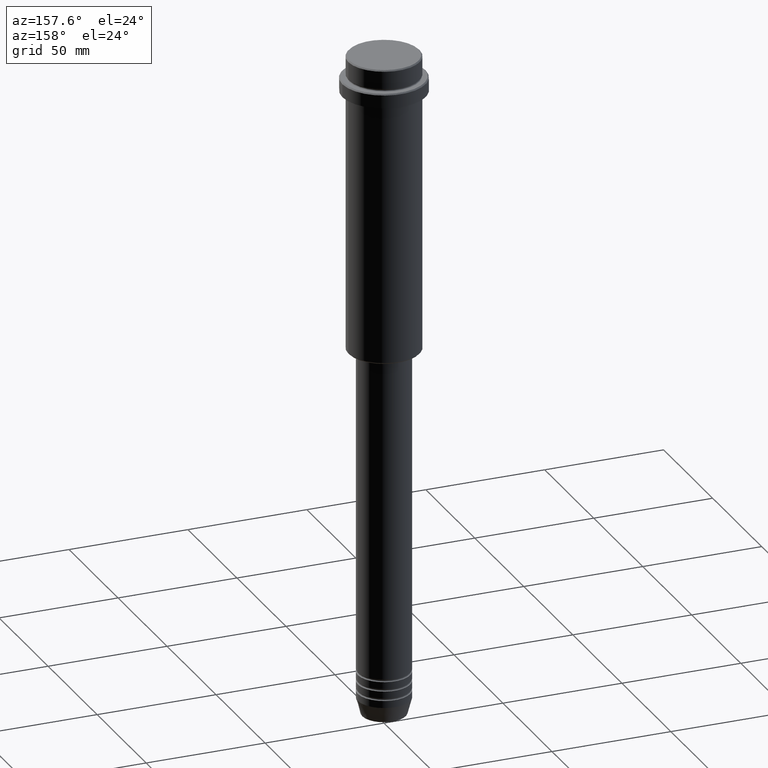
[diagram: clean part render]
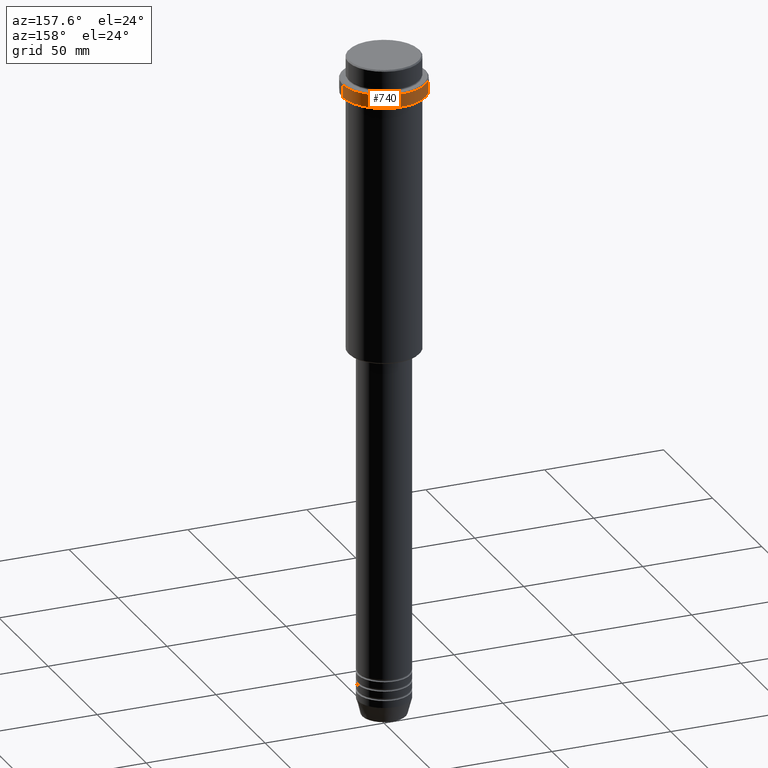
[diagram: same view with one face highlighted and labeled with its STEP entity id]
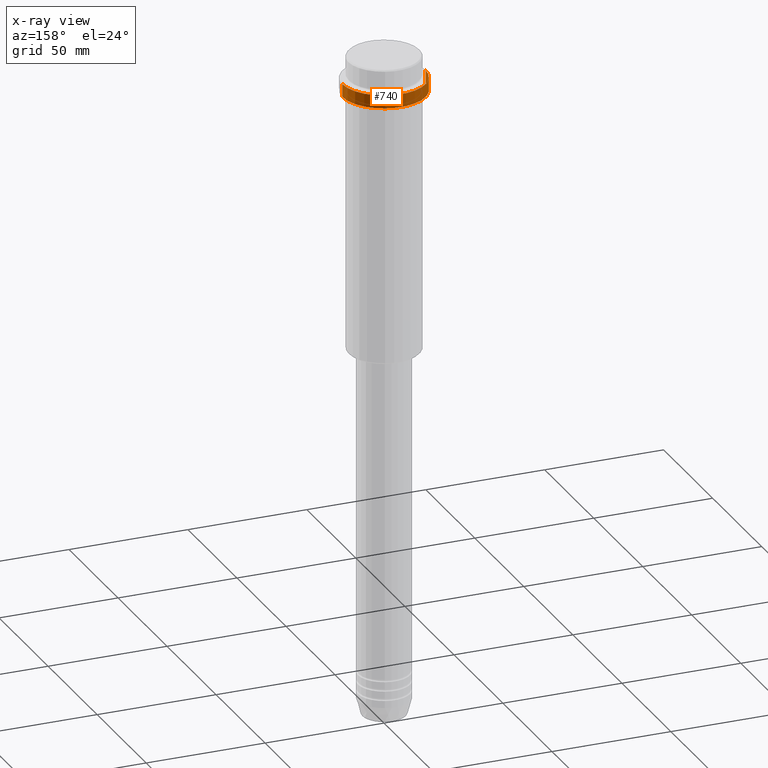
[diagram: x-ray of the same camera — body ghosted, the highlighted face saturated]
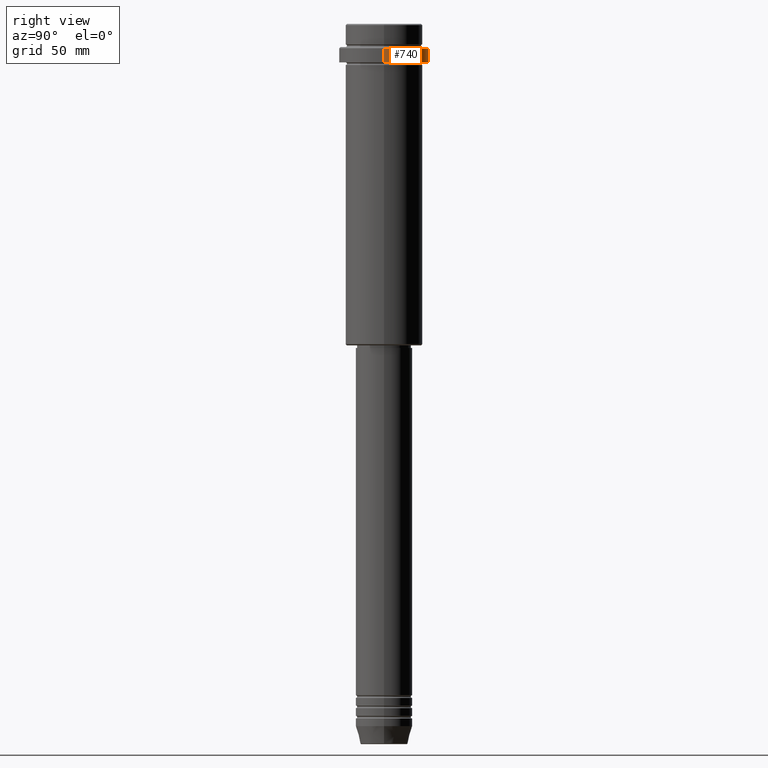
[diagram: same view with one face highlighted and labeled with its STEP entity id]
A machine part, auxiliary view. The second image highlights one B-rep face of the part: STEP entity #740.
The next image is the same camera in x-ray: the body ghosted, the highlighted face saturated — about 0% of this face is hidden behind the body in this view.
A second angle (right view) of the same face is appended — the face is thin or edge-on in the first view.
In plain terms, the highlighted cylindrical surface (partial cylindrical patch) has radius 17.5 mm, axis along (-0, -0, 1).
Its self-contained STEP definition (entity closure, byte-faithful):
#33 = AXIS2_PLACEMENT_3D ( 'NONE', #88, #294, #726 ) ;
#88 = CARTESIAN_POINT ( 'NONE',  ( 0.000000000000000000, 0.000000000000000000, -15.00000000000000000 ) ) ;
#136 = CARTESIAN_POINT ( 'NONE',  ( 0.000000000000000000, 0.000000000000000000, 0.000000000000000000 ) ) ;
#149 = CIRCLE ( 'NONE', #33, 17.50000000000000000 ) ;
#294 = DIRECTION ( 'NONE',  ( -0.000000000000000000, -0.000000000000000000, 1.000000000000000000 ) ) ;
#333 = CARTESIAN_POINT ( 'NONE',  ( 17.50000000000000000, 0.000000000000000000, -15.00000000000000000 ) ) ;
#338 = ORIENTED_EDGE ( 'NONE', *, *, #385, .F. ) ;
#354 = FACE_OUTER_BOUND ( 'NONE', #1118, .T. ) ;
#381 = VERTEX_POINT ( 'NONE', #780 ) ;
#385 = EDGE_CURVE ( 'NONE', #608, #1025, #1212, .T. ) ;
#527 = DIRECTION ( 'NONE',  ( -0.000000000000000000, -0.000000000000000000, 1.000000000000000000 ) ) ;
#536 = VECTOR ( 'NONE', #1109, 1000.000000000000000 ) ;
#551 = LINE ( 'NONE', #1205, #887 ) ;
#552 = DIRECTION ( 'NONE',  ( 0.000000000000000000, 0.000000000000000000, -1.000000000000000000 ) ) ;
#593 = DIRECTION ( 'NONE',  ( 1.000000000000000000, 0.000000000000000000, 0.000000000000000000 ) ) ;
#608 = VERTEX_POINT ( 'NONE', #333 ) ;
#619 = CARTESIAN_POINT ( 'NONE',  ( -17.50000000000000000, 2.143131898507868248E-15, -9.499999999999971578 ) ) ;
#670 = CARTESIAN_POINT ( 'NONE',  ( 17.50000000000000000, 0.000000000000000000, 0.000000000000000000 ) ) ;
#681 = EDGE_CURVE ( 'NONE', #927, #1025, #949, .T. ) ;
#720 = AXIS2_PLACEMENT_3D ( 'NONE', #136, #1126, #593 ) ;
#726 = DIRECTION ( 'NONE',  ( 1.000000000000000000, 0.000000000000000000, 0.000000000000000000 ) ) ;
#740 = ADVANCED_FACE ( 'NONE', ( #354 ), #921, .T. ) ;
#766 = AXIS2_PLACEMENT_3D ( 'NONE', #865, #552, #1296 ) ;
#780 = CARTESIAN_POINT ( 'NONE',  ( -17.50000000000000000, 2.143131898507868248E-15, -15.00000000000000000 ) ) ;
#781 = ORIENTED_EDGE ( 'NONE', *, *, #681, .T. ) ;
#805 = ORIENTED_EDGE ( 'NONE', *, *, #1370, .T. ) ;
#839 = ORIENTED_EDGE ( 'NONE', *, *, #996, .T. ) ;
#865 = CARTESIAN_POINT ( 'NONE',  ( 0.000000000000000000, 0.000000000000000000, -9.499999999999971578 ) ) ;
#887 = VECTOR ( 'NONE', #527, 1000.000000000000000 ) ;
#921 = CYLINDRICAL_SURFACE ( 'NONE', #720, 17.50000000000000000 ) ;
#927 = VERTEX_POINT ( 'NONE', #619 ) ;
#949 = CIRCLE ( 'NONE', #766, 17.50000000000000000 ) ;
#966 = CARTESIAN_POINT ( 'NONE',  ( 17.50000000000000000, 0.000000000000000000, -9.499999999999971578 ) ) ;
#996 = EDGE_CURVE ( 'NONE', #608, #381, #149, .T. ) ;
#1025 = VERTEX_POINT ( 'NONE', #966 ) ;
#1109 = DIRECTION ( 'NONE',  ( -0.000000000000000000, -0.000000000000000000, 1.000000000000000000 ) ) ;
#1118 = EDGE_LOOP ( 'NONE', ( #839, #805, #781, #338 ) ) ;
#1126 = DIRECTION ( 'NONE',  ( -0.000000000000000000, -0.000000000000000000, 1.000000000000000000 ) ) ;
#1205 = CARTESIAN_POINT ( 'NONE',  ( -17.50000000000000000, 2.143131898507868248E-15, 0.000000000000000000 ) ) ;
#1212 = LINE ( 'NONE', #670, #536 ) ;
#1296 = DIRECTION ( 'NONE',  ( 1.000000000000000000, 0.000000000000000000, 0.000000000000000000 ) ) ;
#1370 = EDGE_CURVE ( 'NONE', #381, #927, #551, .T. ) ;